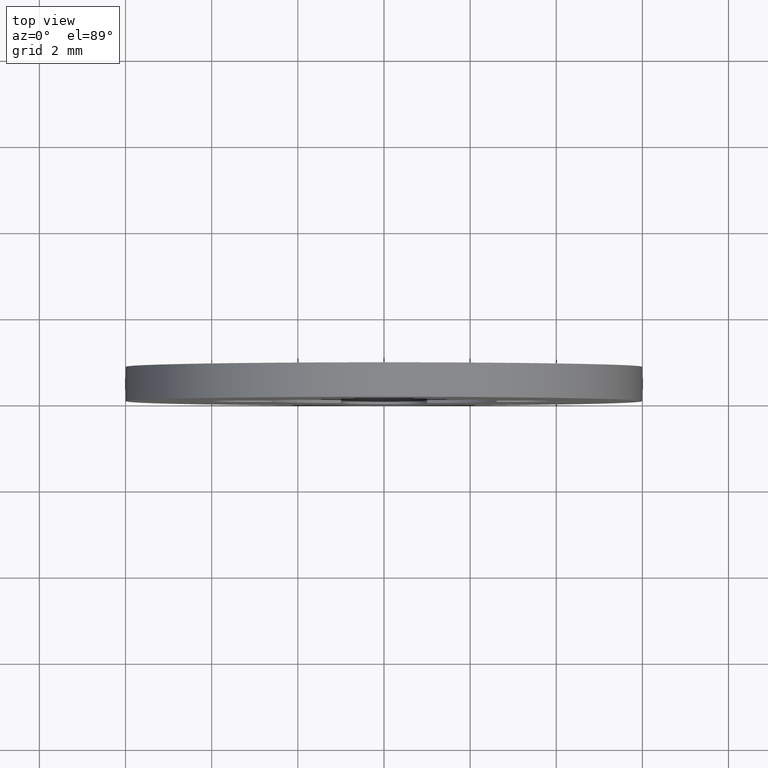
[diagram: clean part render]
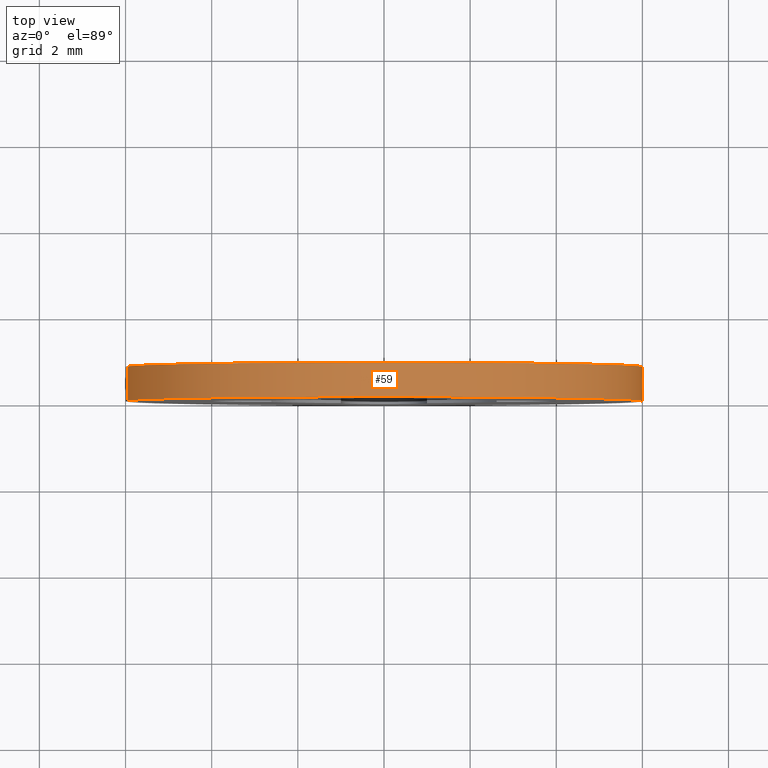
[diagram: same view with one face highlighted and labeled with its STEP entity id]
A machine part, top view. The second image highlights one B-rep face of the part: STEP entity #59.
In plain terms, the highlighted cylindrical surface (partial cylindrical patch) has radius 6 mm, axis along (0, 1, 0).
Its self-contained STEP definition (entity closure, byte-faithful):
#59=ADVANCED_FACE('',(#253),#252,.T.);
#252=CYLINDRICAL_SURFACE('',#362,6.00000000000E+00);
#253=FACE_OUTER_BOUND('',#363,.T.);
#359=CARTESIAN_POINT('',(-3.50417866765E-16,8.20000000000E-01,1.32193979310E-15));
#360=DIRECTION('',(2.06303218607E-17,1.00000000000E+00,1.73560714814E-16));
#361=DIRECTION('',(9.93009526364E-01,-4.00593428433E-32,-1.18034234657E-01));
#362=AXIS2_PLACEMENT_3D('',#359,#360,#361);
#363=EDGE_LOOP('',(#470,#471,#472,#473,#474,#475));
#470=ORIENTED_EDGE('',*,*,#495,.F.);
#471=ORIENTED_EDGE('',*,*,#497,.F.);
#472=ORIENTED_EDGE('',*,*,#530,.T.);
#473=ORIENTED_EDGE('',*,*,#476,.T.);
#474=ORIENTED_EDGE('',*,*,#478,.T.);
#475=ORIENTED_EDGE('',*,*,#531,.F.);
#476=EDGE_CURVE('',#532,#533,#534,.T.);
#478=EDGE_CURVE('',#533,#540,#547,.T.);
#495=EDGE_CURVE('',#665,#666,#667,.T.);
#497=EDGE_CURVE('',#673,#665,#680,.T.);
#530=EDGE_CURVE('',#673,#532,#894,.T.);
#531=EDGE_CURVE('',#666,#540,#900,.T.);
#532=VERTEX_POINT('',#906);
#533=VERTEX_POINT('',#907);
#534=CIRCLE('',#911,6.00000000000E+00);
#540=VERTEX_POINT('',#912);
#547=CIRCLE('',#920,6.00000000000E+00);
#665=VERTEX_POINT('',#993);
#666=VERTEX_POINT('',#994);
#667=CIRCLE('',#998,6.00000000000E+00);
#673=VERTEX_POINT('',#999);
#680=CIRCLE('',#1007,6.00000000000E+00);
#894=(BOUNDED_CURVE() B_SPLINE_CURVE(1,(#1128,#1129),.UNSPECIFIED.,.F.,.F.) B_SPLINE_CURVE_WITH_KNOTS((2,2),(8.33333730703E-02,9.16666640476E-01),.UNSPECIFIED.) CURVE() GEOMETRIC_REPRESENTATION_ITEM() RATIONAL_B_SPLINE_CURVE((1.00000000000E+00,1.00000000000E+00)) REPRESENTATION_ITEM('') );
#900=(BOUNDED_CURVE() B_SPLINE_CURVE(1,(#1130,#1131),.UNSPECIFIED.,.F.,.F.) B_SPLINE_CURVE_WITH_KNOTS((2,2),(8.33333333349E-02,9.16666666667E-01),.UNSPECIFIED.) CURVE() GEOMETRIC_REPRESENTATION_ITEM() RATIONAL_B_SPLINE_CURVE((7.50000000000E-01,7.50000000000E-01)) REPRESENTATION_ITEM('') );
#906=CARTESIAN_POINT('',(5.95805716504E+00,8.00000000000E-01,-7.08205350218E-01));
#907=CARTESIAN_POINT('',(-3.23074900166E-14,8.00000000000E-01,6.00000000000E+00));
#908=CARTESIAN_POINT('',(-8.09130540347E-13,8.00000000000E-01,-1.77813319624E-12));
#909=DIRECTION('',(6.53194715796E-17,-1.00000000000E+00,2.35995732097E-16));
#910=DIRECTION('',(1.29118937764E-13,2.35995732097E-16,1.00000000000E+00));
#911=AXIS2_PLACEMENT_3D('',#908,#909,#910);
#912=CARTESIAN_POINT('',(-5.95793466626E+00,8.00000000000E-01,7.09235160270E-01));
#917=CARTESIAN_POINT('',(-8.09130540347E-13,8.00000000000E-01,-1.77813319624E-12));
#918=DIRECTION('',(6.53194715796E-17,-1.00000000000E+00,2.35995732097E-16));
#919=DIRECTION('',(1.29118937764E-13,2.35995732097E-16,1.00000000000E+00));
#920=AXIS2_PLACEMENT_3D('',#917,#918,#919);
#993=CARTESIAN_POINT('',(1.60982338571E-14,8.00121012256E-13,6.00000000000E+00));
#994=CARTESIAN_POINT('',(-5.95793466626E+00,4.40724156108E-14,7.09235160270E-01));
#995=CARTESIAN_POINT('',(-8.28226376370E-13,6.59062363496E-14,-1.82343029564E-12));
#996=DIRECTION('',(1.82315375826E-14,-1.00000000000E+00,1.22369129318E-13));
#997=DIRECTION('',(1.40359945888E-13,1.22369129318E-13,1.00000000000E+00));
#998=AXIS2_PLACEMENT_3D('',#995,#996,#997);
#999=CARTESIAN_POINT('',(5.95805716504E+00,8.78683073894E-14,-7.08205350218E-01));
#1004=CARTESIAN_POINT('',(-8.28226376370E-13,6.59062363496E-14,-1.82343029564E-12));
#1005=DIRECTION('',(1.82315375826E-14,-1.00000000000E+00,1.22369129318E-13));
#1006=DIRECTION('',(1.40359945888E-13,1.22369129318E-13,1.00000000000E+00));
#1007=AXIS2_PLACEMENT_3D('',#1004,#1005,#1006);
#1128=CARTESIAN_POINT('',(5.95805715818E+00,3.81460480425E-08,-7.08205407941E-01));
#1129=CARTESIAN_POINT('',(5.95805715818E+00,7.99999974857E-01,-7.08205407941E-01));
#1130=CARTESIAN_POINT('',(-5.95805715818E+00,5.90823686271E-14,7.08205407941E-01));
#1131=CARTESIAN_POINT('',(-5.95805715818E+00,8.00000000000E-01,7.08205407941E-01));